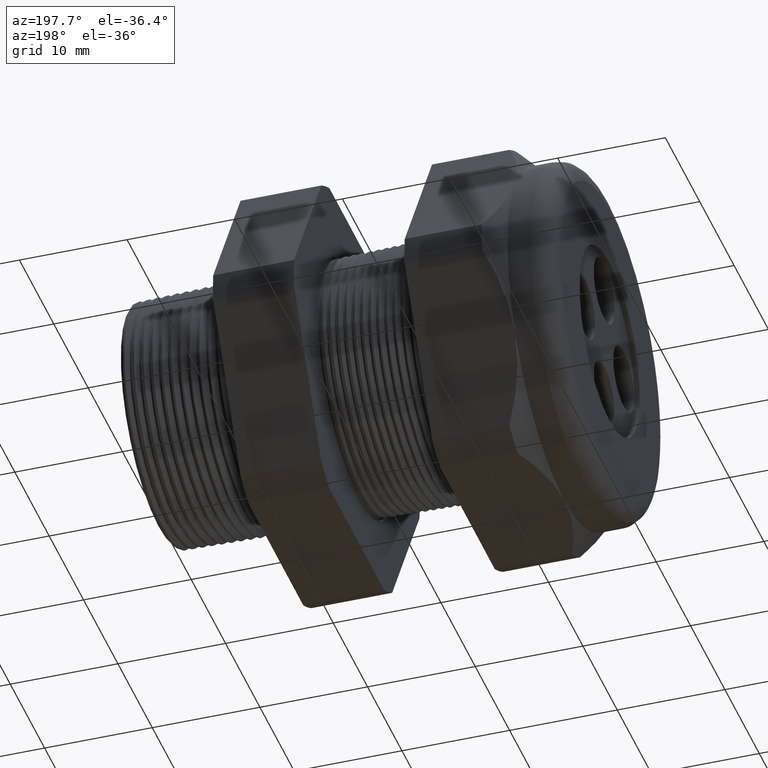
[diagram: clean part render]
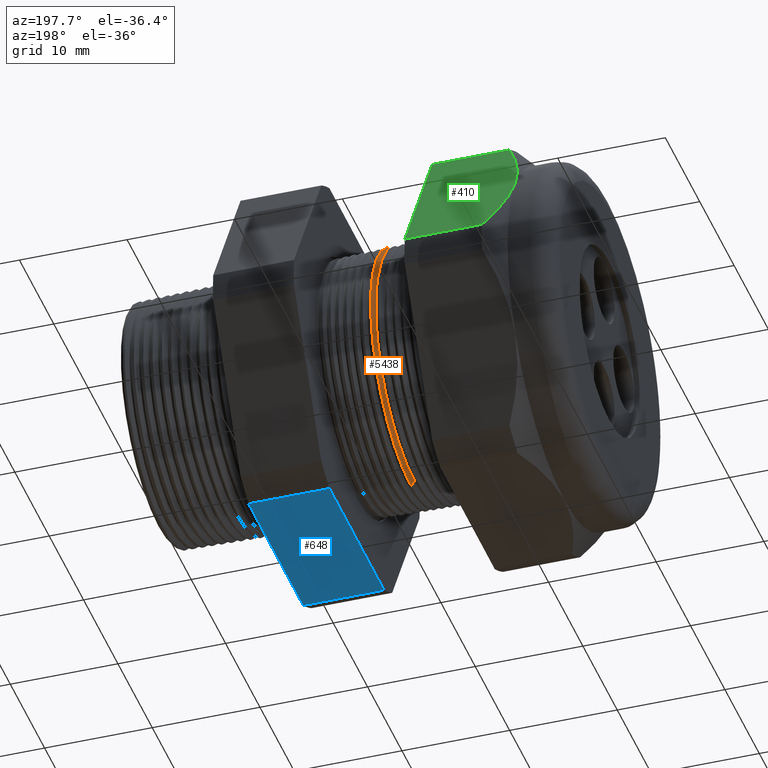
[diagram: same view with three faces highlighted in distinct colors, each labeled with its STEP entity id]
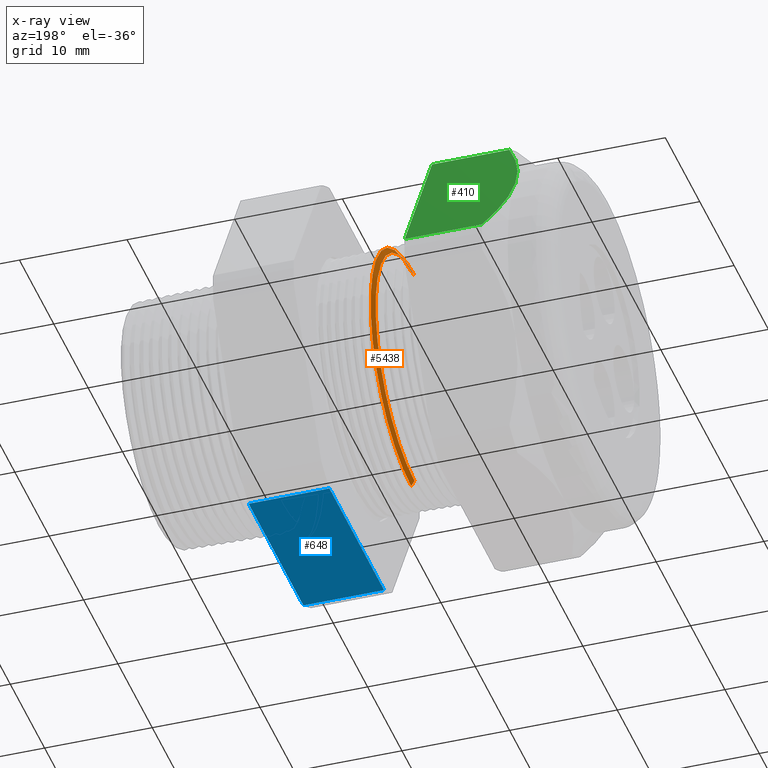
[diagram: x-ray of the same camera — body ghosted, the three highlighted faces saturated]
A machine part, auxiliary view with three faces highlighted in distinct colors.
The next image is the same camera in x-ray (body ghosted, the three faces saturated) — at least one of them is partly hidden behind the body in this view.
Their STEP definitions:

[orange] entity #5438 — the highlighted conical surface has half-angle 58.5 deg.
#4074 = AXIS2_PLACEMENT_3D ( 'NONE', #4081, #4136, #4135 ) ;
#4075 = CIRCLE ( 'NONE', #4074, 0.4446307351718083400 ) ;
#4076 = DIRECTION ( 'NONE',  ( 0.0000000000000000000, 0.0000000000000000000, -1.000000000000000000 ) ) ;
#4077 = DIRECTION ( 'NONE',  ( 1.000000000000000000, 0.0000000000000000000, 0.0000000000000000000 ) ) ;
#4078 = CARTESIAN_POINT ( 'NONE',  ( -0.8165405736958172300, 0.0000000000000000000, 0.0000000000000000000 ) ) ;
#4079 = AXIS2_PLACEMENT_3D ( 'NONE', #4078, #4077, #4076 ) ;
#4080 = CONICAL_SURFACE ( 'NONE', #4079, 0.4446307351718083400, 1.021017612416699200 ) ;
#4081 = CARTESIAN_POINT ( 'NONE',  ( -0.8165405736958172300, 0.0000000000000000000, 0.0000000000000000000 ) ) ;
#4082 = FACE_OUTER_BOUND ( 'NONE', #5439, .T. ) ;
#4133 = CARTESIAN_POINT ( 'NONE',  ( -0.8165405736958172300, 0.0000000000000000000, 0.4446307351718083400 ) ) ;
#4134 = CARTESIAN_POINT ( 'NONE',  ( -0.8165405736958172300, 5.571220089116329200E-017, -0.4446307351718083400 ) ) ;
#4135 = DIRECTION ( 'NONE',  ( 0.0000000000000000000, 0.0000000000000000000, -1.000000000000000000 ) ) ;
#4136 = DIRECTION ( 'NONE',  ( 1.000000000000000000, 0.0000000000000000000, 0.0000000000000000000 ) ) ;
#4205 = DIRECTION ( 'NONE',  ( 0.5224985647159348100, 0.0000000000000000000, -0.8526401643541007300 ) ) ;
#4206 = VECTOR ( 'NONE', #4205, 39.37007874015748900 ) ;
#4207 = CARTESIAN_POINT ( 'NONE',  ( -0.8165405736958172300, 0.0000000000000000000, -0.4446307351718083400 ) ) ;
#4208 = LINE ( 'NONE', #4207, #4206 ) ;
#4209 = CARTESIAN_POINT ( 'NONE',  ( -0.8043001372766740400, 5.689774081997992500E-017, -0.4646053119935833500 ) ) ;
#4210 = DIRECTION ( 'NONE',  ( 0.0000000000000000000, 0.0000000000000000000, -1.000000000000000000 ) ) ;
#4211 = DIRECTION ( 'NONE',  ( -1.000000000000000000, 0.0000000000000000000, 0.0000000000000000000 ) ) ;
#4212 = CARTESIAN_POINT ( 'NONE',  ( -0.8043001372766740400, 0.0000000000000000000, 0.0000000000000000000 ) ) ;
#4213 = AXIS2_PLACEMENT_3D ( 'NONE', #4212, #4211, #4210 ) ;
#4214 = CIRCLE ( 'NONE', #4213, 0.4646053119935832900 ) ;
#4215 = CARTESIAN_POINT ( 'NONE',  ( -0.8043001372766740400, 0.0000000000000000000, 0.4646053119935833500 ) ) ;
#4216 = DIRECTION ( 'NONE',  ( 0.5224985647159348100, 1.044183048100722500E-016, 0.8526401643541007300 ) ) ;
#4217 = VECTOR ( 'NONE', #4216, 39.37007874015748900 ) ;
#4218 = CARTESIAN_POINT ( 'NONE',  ( -0.8165405736958172300, 5.445156066306895900E-017, 0.4446307351718083400 ) ) ;
#4224 = LINE ( 'NONE', #4218, #4217 ) ;
#5438 = ADVANCED_FACE ( 'NONE', ( #4082 ), #4080, .T. ) ;
#5439 = EDGE_LOOP ( 'NONE', ( #5440, #5444, #5499, #5502 ) ) ;
#5440 = ORIENTED_EDGE ( 'NONE', *, *, #5441, .T. ) ;
#5441 = EDGE_CURVE ( 'NONE', #5442, #5443, #4075, .T. ) ;
#5442 = VERTEX_POINT ( 'NONE', #4134 ) ;
#5443 = VERTEX_POINT ( 'NONE', #4133 ) ;
#5444 = ORIENTED_EDGE ( 'NONE', *, *, #5497, .T. ) ;
#5497 = EDGE_CURVE ( 'NONE', #5443, #5498, #4224, .T. ) ;
#5498 = VERTEX_POINT ( 'NONE', #4215 ) ;
#5499 = ORIENTED_EDGE ( 'NONE', *, *, #5500, .T. ) ;
#5500 = EDGE_CURVE ( 'NONE', #5498, #5501, #4214, .T. ) ;
#5501 = VERTEX_POINT ( 'NONE', #4209 ) ;
#5502 = ORIENTED_EDGE ( 'NONE', *, *, #5503, .F. ) ;
#5503 = EDGE_CURVE ( 'NONE', #5442, #5501, #4208, .T. ) ;

[blue] entity #648 — the highlighted planar face has unit normal (0, 0, -1).
#439 = VERTEX_POINT ( 'NONE', #2037 ) ;
#441 = EDGE_CURVE ( 'NONE', #439, #442, #2036, .T. ) ;
#442 = VERTEX_POINT ( 'NONE', #2032 ) ;
#518 = EDGE_CURVE ( 'NONE', #546, #519, #2199, .T. ) ;
#519 = VERTEX_POINT ( 'NONE', #2195 ) ;
#546 = VERTEX_POINT ( 'NONE', #2216 ) ;
#595 = EDGE_LOOP ( 'NONE', ( #649, #650, #651, #653 ) ) ;
#648 = ADVANCED_FACE ( 'NONE', ( #2346 ), #2345, .T. ) ;
#649 = ORIENTED_EDGE ( 'NONE', *, *, #668, .T. ) ;
#650 = ORIENTED_EDGE ( 'NONE', *, *, #518, .F. ) ;
#651 = ORIENTED_EDGE ( 'NONE', *, *, #652, .F. ) ;
#652 = EDGE_CURVE ( 'NONE', #442, #546, #2340, .T. ) ;
#653 = ORIENTED_EDGE ( 'NONE', *, *, #441, .F. ) ;
#668 = EDGE_CURVE ( 'NONE', #439, #519, #2392, .T. ) ;
#2032 = CARTESIAN_POINT ( 'NONE',  ( -0.3100000000000000000, 0.3131489262315934100, -0.6500000000000001300 ) ) ;
#2033 = DIRECTION ( 'NONE',  ( 0.0000000000000000000, 1.000000000000000000, 0.0000000000000000000 ) ) ;
#2034 = VECTOR ( 'NONE', #2033, 39.37007874015748100 ) ;
#2035 = CARTESIAN_POINT ( 'NONE',  ( -0.3100000000000000000, 1.300000000000000000, -0.6500000000000001300 ) ) ;
#2036 = LINE ( 'NONE', #2035, #2034 ) ;
#2037 = CARTESIAN_POINT ( 'NONE',  ( -0.3100000000000000000, -0.3131489262315934100, -0.6500000000000001300 ) ) ;
#2195 = CARTESIAN_POINT ( 'NONE',  ( -0.6052755905511810800, -0.3131489262315934100, -0.6500000000000001300 ) ) ;
#2196 = DIRECTION ( 'NONE',  ( 0.0000000000000000000, -1.000000000000000000, 0.0000000000000000000 ) ) ;
#2197 = VECTOR ( 'NONE', #2196, 39.37007874015748100 ) ;
#2198 = CARTESIAN_POINT ( 'NONE',  ( -0.6052755905511809600, 1.300000000000000000, -0.6500000000000001300 ) ) ;
#2199 = LINE ( 'NONE', #2198, #2197 ) ;
#2216 = CARTESIAN_POINT ( 'NONE',  ( -0.6052755905511810800, 0.3131489262315934100, -0.6500000000000001300 ) ) ;
#2337 = DIRECTION ( 'NONE',  ( -1.000000000000000000, 0.0000000000000000000, 0.0000000000000000000 ) ) ;
#2338 = VECTOR ( 'NONE', #2337, 39.37007874015748100 ) ;
#2339 = CARTESIAN_POINT ( 'NONE',  ( 0.1200000000000000900, 0.3131489262315934100, -0.6500000000000001300 ) ) ;
#2340 = LINE ( 'NONE', #2339, #2338 ) ;
#2341 = DIRECTION ( 'NONE',  ( -1.000000000000000000, 0.0000000000000000000, 0.0000000000000000000 ) ) ;
#2342 = DIRECTION ( 'NONE',  ( 0.0000000000000000000, 0.0000000000000000000, -1.000000000000000000 ) ) ;
#2343 = CARTESIAN_POINT ( 'NONE',  ( 0.1200000000000000900, 0.3131489262315934100, -0.6500000000000001300 ) ) ;
#2344 = AXIS2_PLACEMENT_3D ( 'NONE', #2343, #2342, #2341 ) ;
#2345 = PLANE ( 'NONE',  #2344 ) ;
#2346 = FACE_OUTER_BOUND ( 'NONE', #595, .T. ) ;
#2384 = DIRECTION ( 'NONE',  ( -1.000000000000000000, 0.0000000000000000000, 0.0000000000000000000 ) ) ;
#2385 = VECTOR ( 'NONE', #2384, 39.37007874015748100 ) ;
#2386 = CARTESIAN_POINT ( 'NONE',  ( 0.1200000000000000900, -0.3131489262315934100, -0.6500000000000001300 ) ) ;
#2392 = LINE ( 'NONE', #2386, #2385 ) ;

[green] entity #410 — the highlighted planar face has unit normal (0, 0.866, 0.5).
#348 = EDGE_CURVE ( 'NONE', #349, #350, #1819, .T. ) ;
#349 = VERTEX_POINT ( 'NONE', #1815 ) ;
#350 = VERTEX_POINT ( 'NONE', #1814 ) ;
#393 = ORIENTED_EDGE ( 'NONE', *, *, #348, .F. ) ;
#394 = ORIENTED_EDGE ( 'NONE', *, *, #395, .F. ) ;
#395 = EDGE_CURVE ( 'NONE', #414, #349, #1907, .T. ) ;
#410 = ADVANCED_FACE ( 'NONE', ( #1936 ), #1935, .T. ) ;
#411 = EDGE_LOOP ( 'NONE', ( #412, #416, #418, #393, #394 ) ) ;
#412 = ORIENTED_EDGE ( 'NONE', *, *, #413, .T. ) ;
#413 = EDGE_CURVE ( 'NONE', #414, #415, #1930, .T. ) ;
#414 = VERTEX_POINT ( 'NONE', #1926 ) ;
#415 = VERTEX_POINT ( 'NONE', #1925 ) ;
#416 = ORIENTED_EDGE ( 'NONE', *, *, #417, .T. ) ;
#417 = EDGE_CURVE ( 'NONE', #415, #5682, #1924, .T. ) ;
#418 = ORIENTED_EDGE ( 'NONE', *, *, #419, .T. ) ;
#419 = EDGE_CURVE ( 'NONE', #5682, #350, #1982, .T. ) ;
#1814 = CARTESIAN_POINT ( 'NONE',  ( -1.293145669291338600, 0.4063420493440890200, 0.5961949252843787800 ) ) ;
#1815 = CARTESIAN_POINT ( 'NONE',  ( -1.010314960629921100, 0.4063420493440890700, 0.5961949252843787800 ) ) ;
#1816 = DIRECTION ( 'NONE',  ( -1.000000000000000000, 0.0000000000000000000, 0.0000000000000000000 ) ) ;
#1817 = VECTOR ( 'NONE', #1816, 39.37007874015748100 ) ;
#1818 = CARTESIAN_POINT ( 'NONE',  ( 0.1200000000000000900, 0.4063420493440890700, 0.5961949252843787800 ) ) ;
#1819 = LINE ( 'NONE', #1818, #1817 ) ;
#1904 = DIRECTION ( 'NONE',  ( 0.0000000000000000000, -0.4999999999999998900, 0.8660254037844386000 ) ) ;
#1905 = VECTOR ( 'NONE', #1904, 39.37007874015748100 ) ;
#1906 = CARTESIAN_POINT ( 'NONE',  ( -1.010314960629921100, 0.6804165124598855500, 0.1214840301106571000 ) ) ;
#1907 = LINE ( 'NONE', #1906, #1905 ) ;
#1923 = CARTESIAN_POINT ( 'NONE',  ( -1.293145669291338800, 0.7194909755756817600, 0.05380507471562173000 ) ) ;
#1924 = B_SPLINE_CURVE_WITH_KNOTS ( 'NONE', 3,
 ( #1923, #1981, #1980, #1979, #1978, #1977, #1976, #1975, #1974, #1973 ),
 .UNSPECIFIED., .F., .F.,
 ( 4, 2, 2, 2, 4 ),
 ( 2.483249165348705300E-007, 0.004082012451910145000, 0.006122894515406946500, 0.007143335547155351200, 0.008163776578903752400 ),
 .UNSPECIFIED. ) ;
#1925 = CARTESIAN_POINT ( 'NONE',  ( -1.293145669291338800, 0.7194909755756817600, 0.05380507471562173000 ) ) ;
#1926 = CARTESIAN_POINT ( 'NONE',  ( -1.010314960629921100, 0.7194909755756817600, 0.05380507471562173000 ) ) ;
#1927 = DIRECTION ( 'NONE',  ( -1.000000000000000000, 0.0000000000000000000, 0.0000000000000000000 ) ) ;
#1928 = VECTOR ( 'NONE', #1927, 39.37007874015748100 ) ;
#1929 = CARTESIAN_POINT ( 'NONE',  ( 0.1200000000000000900, 0.7194909755756817600, 0.05380507471562173000 ) ) ;
#1930 = LINE ( 'NONE', #1929, #1928 ) ;
#1931 = DIRECTION ( 'NONE',  ( 0.0000000000000000000, -0.4999999999999998900, 0.8660254037844386000 ) ) ;
#1932 = DIRECTION ( 'NONE',  ( 0.0000000000000000000, 0.8660254037844387100, 0.4999999999999999400 ) ) ;
#1933 = CARTESIAN_POINT ( 'NONE',  ( 0.1200000000000000900, 0.4063420493440890700, 0.5961949252843786700 ) ) ;
#1934 = AXIS2_PLACEMENT_3D ( 'NONE', #1933, #1932, #1931 ) ;
#1935 = PLANE ( 'NONE',  #1934 ) ;
#1936 = FACE_OUTER_BOUND ( 'NONE', #411, .T. ) ;
#1967 = CARTESIAN_POINT ( 'NONE',  ( -1.293145669291338600, 0.4063420493440890200, 0.5961949252843787800 ) ) ;
#1968 = CARTESIAN_POINT ( 'NONE',  ( -1.314794001287756400, 0.4312810962751709700, 0.5529992289074001600 ) ) ;
#1969 = CARTESIAN_POINT ( 'NONE',  ( -1.332917759362547200, 0.4570573558384625800, 0.5083534377146957700 ) ) ;
#1970 = CARTESIAN_POINT ( 'NONE',  ( -1.357805912917037200, 0.5092737903524789900, 0.4179119201463267800 ) ) ;
#1971 = CARTESIAN_POINT ( 'NONE',  ( -1.364645669291337800, 0.5358248930679738700, 0.3719240612461091100 ) ) ;
#1972 = CARTESIAN_POINT ( 'NONE',  ( -1.364645669291338500, 0.5629165124598856100, 0.3250000000000002300 ) ) ;
#1973 = CARTESIAN_POINT ( 'NONE',  ( -1.364645669291338500, 0.5629165124598856100, 0.3250000000000002300 ) ) ;
#1974 = CARTESIAN_POINT ( 'NONE',  ( -1.364645669291338000, 0.5696940647084654000, 0.3132609351545069800 ) ) ;
#1975 = CARTESIAN_POINT ( 'NONE',  ( -1.364216759191441600, 0.5765336067434360100, 0.3014145008494348900 ) ) ;
#1976 = CARTESIAN_POINT ( 'NONE',  ( -1.362513212994342000, 0.5901225526399744800, 0.2778777561353257300 ) ) ;
#1977 = CARTESIAN_POINT ( 'NONE',  ( -1.361244147852752400, 0.5968650273424736000, 0.2661994473818495300 ) ) ;
#1978 = CARTESIAN_POINT ( 'NONE',  ( -1.356260635251699300, 0.6169458720203934200, 0.2314184041407930900 ) ) ;
#1979 = CARTESIAN_POINT ( 'NONE',  ( -1.351369503974020300, 0.6301376168794391400, 0.2085696318044406300 ) ) ;
#1980 = CARTESIAN_POINT ( 'NONE',  ( -1.332638942225223400, 0.6692072927766702400, 0.1408989681151867600 ) ) ;
#1981 = CARTESIAN_POINT ( 'NONE',  ( -1.314767232512606500, 0.6945827664818919900, 0.09694735839161497400 ) ) ;
#1982 = B_SPLINE_CURVE_WITH_KNOTS ( 'NONE', 3,
 ( #1972, #1971, #1970, #1969, #1968, #1967 ),
 .UNSPECIFIED., .F., .F.,
 ( 4, 2, 4 ),
 ( 0.008163776578903752400, 0.01224274182034615900, 0.01632170706178856500 ),
 .UNSPECIFIED. ) ;
#4560 = CARTESIAN_POINT ( 'NONE',  ( -1.364645669291338500, 0.5629165124598856100, 0.3250000000000002300 ) ) ;
#5682 = VERTEX_POINT ( 'NONE', #4560 ) ;